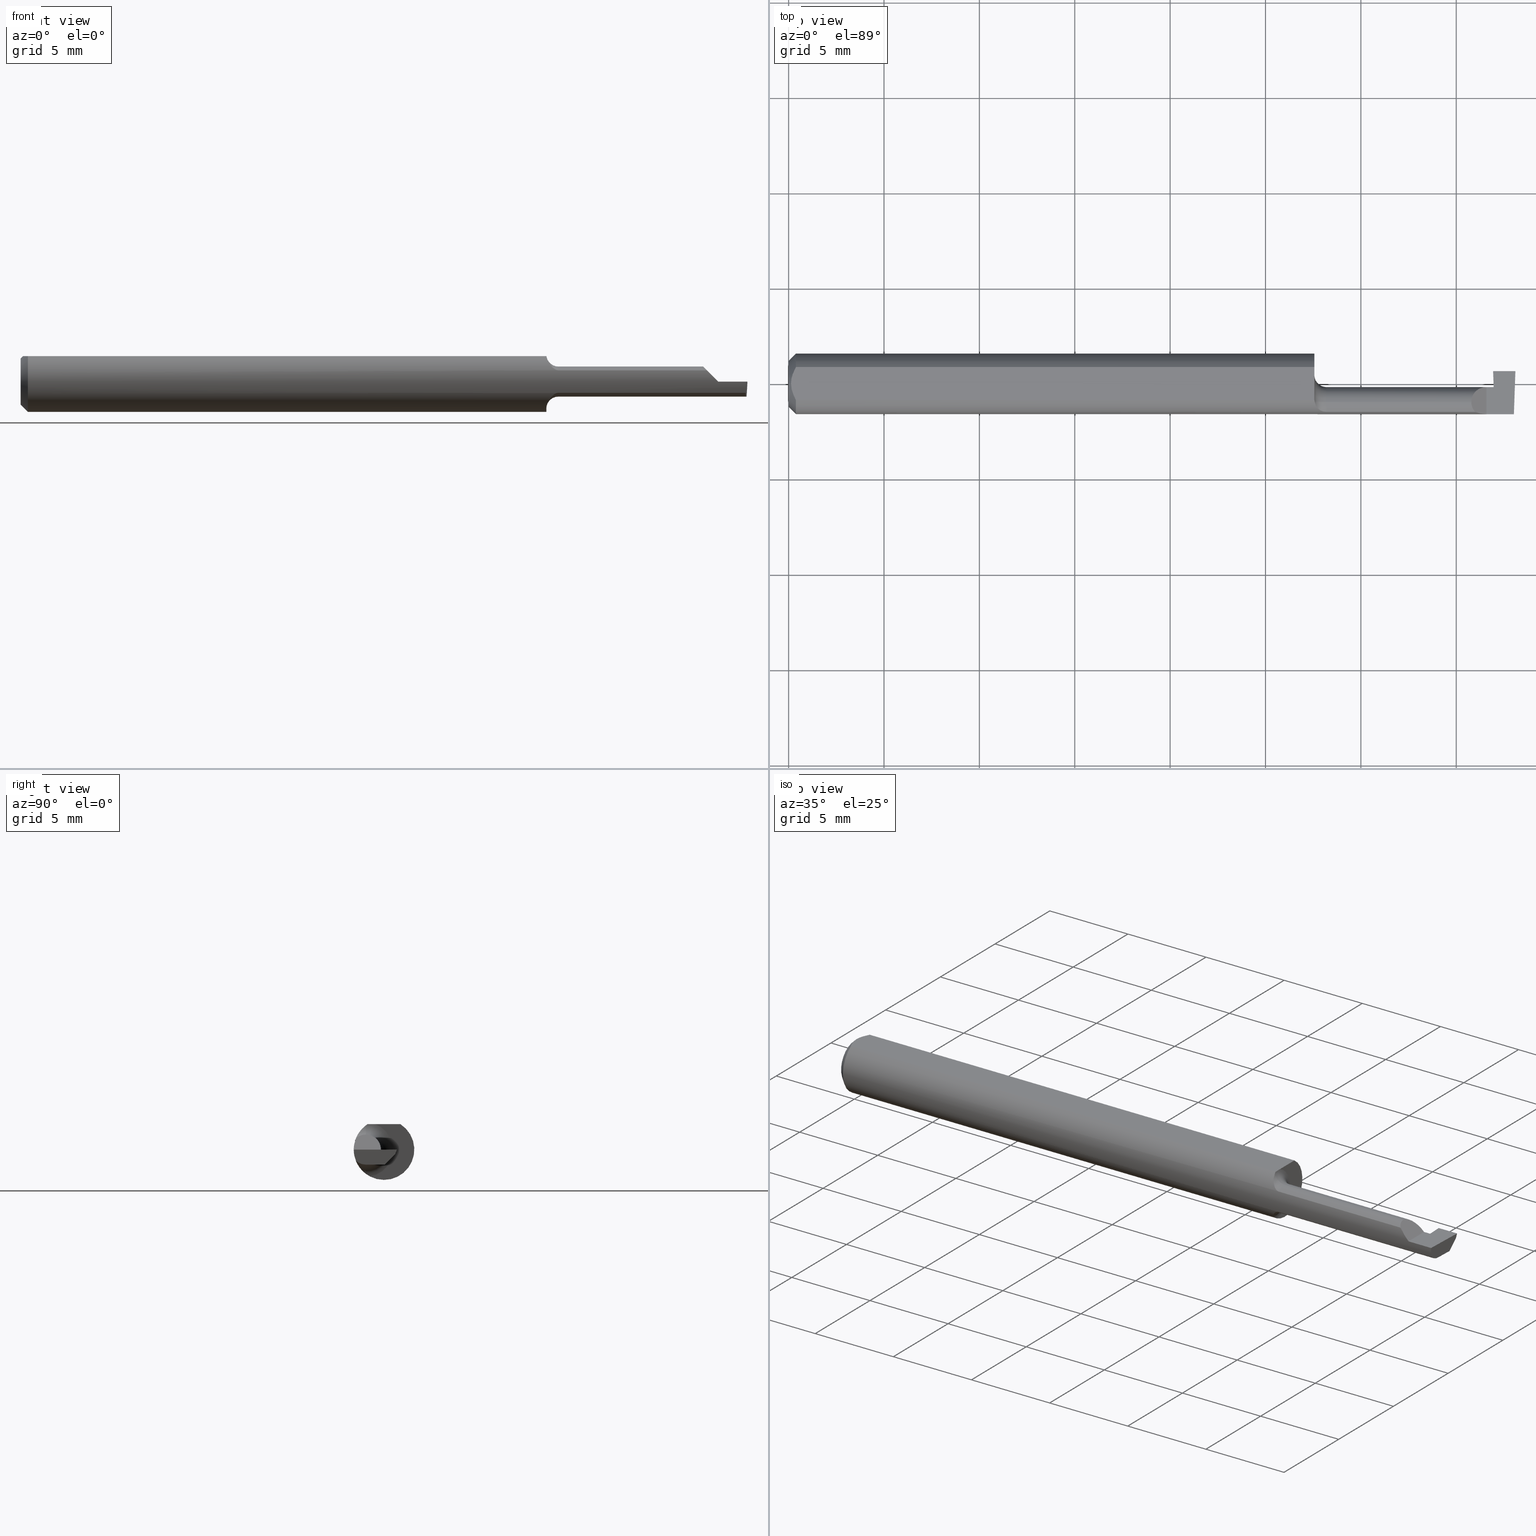
[diagram: canonical four-view strip — front | top / right | iso, engineering-drawing reading convention]
A machine part, canonical four-view strip (front | top / right | iso — engineering-drawing reading convention). The complete STEP part file that produces these views, byte-faithful:
ISO-10303-21;
HEADER;
FILE_DESCRIPTION (( 'STEP AP203' ),
    '1' );
FILE_NAME ('220563-GT045-6.STEP',
    '2024-07-15T18:48:11',
    ( '' ),
    ( '' ),
    'SwSTEP 2.0',
    'SolidWorks 2024',
    '' );
FILE_SCHEMA (( 'CONFIG_CONTROL_DESIGN' ));
ENDSEC;

DATA;
#1 =( BOUNDED_CURVE ( )  B_SPLINE_CURVE ( 3, ( #208, #431, #599, #319 ),
 .UNSPECIFIED., .F., .T. ) 
 B_SPLINE_CURVE_WITH_KNOTS ( ( 4, 4 ),
 ( 0.000000000000000000, 1.570796326794896558 ),
 .UNSPECIFIED. ) 
 CURVE ( )  GEOMETRIC_REPRESENTATION_ITEM ( )  RATIONAL_B_SPLINE_CURVE ( ( 1.000000000000000000, 0.8047378541243649375, 0.8047378541243649375, 1.000000000000000000 ) ) 
 REPRESENTATION_ITEM ( '' )  );
#2 = ADVANCED_BREP_SHAPE_REPRESENTATION ( '220563-GT045-6', ( #227, #687 ), #305 ) ;
#3 = DATE_AND_TIME ( #445, #604 ) ;
#4 = DIRECTION ( 'NONE',  ( -1.000000000000000000, 0.000000000000000000, 1.244982809612622067E-16 ) ) ;
#5 = VERTEX_POINT ( 'NONE', #678 ) ;
#6 = VECTOR ( 'NONE', #194, 39.37007874015748143 ) ;
#7 = DIRECTION ( 'NONE',  ( -0.03654090288697207922, -0.3417917279781195750, -0.9390650547762576794 ) ) ;
#8 = ORIENTED_EDGE ( 'NONE', *, *, #124, .T. ) ;
#9 = ORIENTED_EDGE ( 'NONE', *, *, #271, .F. ) ;
#10 = ORIENTED_EDGE ( 'NONE', *, *, #285, .F. ) ;
#11 = DIRECTION ( 'NONE',  ( -1.000000000000000000, -0.000000000000000000, -0.000000000000000000 ) ) ;
#12 = DIRECTION ( 'NONE',  ( 0.000000000000000000, 0.000000000000000000, -1.000000000000000000 ) ) ;
#13 = ORIENTED_EDGE ( 'NONE', *, *, #271, .T. ) ;
#14 = CARTESIAN_POINT ( 'NONE',  ( 0.004999999999989314207, 8.235553591830799656E-16, 0.05250000000000000500 ) ) ;
#15 = PRODUCT_DEFINITION_FORMATION_WITH_SPECIFIED_SOURCE ( 'ANY', '', #254, .NOT_KNOWN. ) ;
#16 = FACE_OUTER_BOUND ( 'NONE', #65, .T. ) ;
#17 = DIRECTION ( 'NONE',  ( -1.000000000000000000, -0.000000000000000000, -0.000000000000000000 ) ) ;
#18 = EDGE_CURVE ( 'NONE', #538, #423, #701, .T. ) ;
#19 = DIRECTION ( 'NONE',  ( 0.02616100201822768243, -0.0009135623211514326287, 0.9996573249755575929 ) ) ;
#20 = CARTESIAN_POINT ( 'NONE',  ( 1.496892051515234412, -0.06249999999999996531, -4.074989739627355278E-18 ) ) ;
#21 = ORIENTED_EDGE ( 'NONE', *, *, #669, .F. ) ;
#22 = CARTESIAN_POINT ( 'NONE',  ( 1.084999999999999964, -0.02902000000000000066, -0.05535421935137375266 ) ) ;
#23 = CARTESIAN_POINT ( 'NONE',  ( 0.01499999999999999944, 0.000000000000000000, -0.06250000000000000000 ) ) ;
#24 = ORIENTED_EDGE ( 'NONE', *, *, #285, .T. ) ;
#25 = CARTESIAN_POINT ( 'NONE',  ( 1.498327304259646553, 0.001860297657337897561, -0.03099999999999998937 ) ) ;
#26 = CARTESIAN_POINT ( 'NONE',  ( 1.091038272854087943, -0.05007310510346346666, 0.03753991800363104536 ) ) ;
#27 = AXIS2_PLACEMENT_3D ( 'NONE', #210, #368, #536 ) ;
#28 = VERTEX_POINT ( 'NONE', #234 ) ;
#29 = DIRECTION ( 'NONE',  ( 0.000000000000000000, 0.000000000000000000, 1.000000000000000000 ) ) ;
#30 = ORIENTED_EDGE ( 'NONE', *, *, #38, .T. ) ;
#31 = DIRECTION ( 'NONE',  ( 0.000000000000000000, 0.000000000000000000, 1.000000000000000000 ) ) ;
#32 = PLANE ( 'NONE',  #603 ) ;
#33 = ORIENTED_EDGE ( 'NONE', *, *, #326, .T. ) ;
#34 = ADVANCED_FACE ( 'NONE', ( #247 ), #348, .F. ) ;
#35 = DATE_AND_TIME ( #313, #482 ) ;
#36 = CARTESIAN_POINT ( 'NONE',  ( 0.004999999999989314207, 8.235553591830799656E-16, 0.05250000000000000500 ) ) ;
#37 = DIMENSIONAL_EXPONENTS ( 1.000000000000000000, 0.000000000000000000, 0.000000000000000000, 0.000000000000000000, 0.000000000000000000, 0.000000000000000000, 0.000000000000000000 ) ;
#38 = EDGE_CURVE ( 'NONE', #697, #715, #47, .T. ) ;
#39 = VECTOR ( 'NONE', #7, 39.37007874015748854 ) ;
#40 = VERTEX_POINT ( 'NONE', #636 ) ;
#41 = DIRECTION ( 'NONE',  ( 4.253255647401026887E-05, 0.9999999990954908657, -1.860522997331906175E-16 ) ) ;
#42 = CARTESIAN_POINT ( 'NONE',  ( 1.409000000000000474, -0.04514286293877214917, 0.03099999999999999631 ) ) ;
#43 = CARTESIAN_POINT ( 'NONE',  ( 1.456236150116379857, 0.05427201893379499792, -0.03100000000000001019 ) ) ;
#44 = CARTESIAN_POINT ( 'NONE',  ( 1.084999999999999964, -0.006499999999999993630, 5.166678659892382429E-17 ) ) ;
#45 = DIRECTION ( 'NONE',  ( 0.000000000000000000, -0.7071067811865462405, 0.7071067811865487940 ) ) ;
#46 = LINE ( 'NONE', #713, #560 ) ;
#47 = CIRCLE ( 'NONE', #203, 0.04749999999999999362 ) ;
#48 = APPROVAL_PERSON_ORGANIZATION ( #483, #441, #363 ) ;
#49 = EDGE_CURVE ( 'NONE', #715, #697, #547, .T. ) ;
#50 = DIRECTION ( 'NONE',  ( -0.9990483607430197255, 0.03488753751661151370, 0.02617694830785934762 ) ) ;
#51 = EDGE_LOOP ( 'NONE', ( #8, #495, #373 ) ) ;
#52 = B_SPLINE_CURVE_WITH_KNOTS ( 'NONE', 3,
 ( #642, #263, #476, #427 ),
 .UNSPECIFIED., .F., .F.,
 ( 4, 4 ),
 ( 3.663786157375969069E-07, 0.0001117245180919403103 ),
 .UNSPECIFIED. ) ;
#53 = CC_DESIGN_DATE_AND_TIME_ASSIGNMENT ( #338, #709, ( #675 ) ) ;
#54 = LINE ( 'NONE', #274, #424 ) ;
#55 = ORIENTED_EDGE ( 'NONE', *, *, #417, .F. ) ;
#56 = CARTESIAN_POINT ( 'NONE',  ( 1.085049859856598298, -0.02331211554534654354, 0.05250000000000001193 ) ) ;
#57 = CARTESIAN_POINT ( 'NONE',  ( 1.110000000000000098, -0.03749999999999999167, 0.000000000000000000 ) ) ;
#58 = ORIENTED_EDGE ( 'NONE', *, *, #59, .T. ) ;
#59 = EDGE_CURVE ( 'NONE', #28, #92, #649, .T. ) ;
#60 = AXIS2_PLACEMENT_3D ( 'NONE', #407, #419, #116 ) ;
#61 = CARTESIAN_POINT ( 'NONE',  ( 1.440000000000000169, -0.06250000000000000000, 7.469896857675718968E-18 ) ) ;
#62 = ORIENTED_EDGE ( 'NONE', *, *, #107, .T. ) ;
#63 = CARTESIAN_POINT ( 'NONE',  ( 1.085730677800976984, -0.03749999999999999861, 0.05000000000000000278 ) ) ;
#64 = CARTESIAN_POINT ( 'NONE',  ( 0.000000000000000000, 0.000000000000000000, 0.000000000000000000 ) ) ;
#65 = EDGE_LOOP ( 'NONE', ( #58, #525, #149, #112, #444, #257, #535, #236, #21, #640, #550, #335, #10, #485, #133 ) ) ;
#66 = ADVANCED_FACE ( 'NONE', ( #521 ), #502, .F. ) ;
#67 = PLANE ( 'NONE',  #235 ) ;
#68 = DIRECTION ( 'NONE',  ( 0.000000000000000000, 0.000000000000000000, 1.000000000000000000 ) ) ;
#69 = CARTESIAN_POINT ( 'NONE',  ( 1.089533395136242255, -0.04798856493085171954, 0.04019628732337204163 ) ) ;
#70 = AXIS2_PLACEMENT_3D ( 'NONE', #303, #75, #578 ) ;
#71 = AXIS2_PLACEMENT_3D ( 'NONE', #463, #398, #68 ) ;
#72 = DIRECTION ( 'NONE',  ( 0.000000000000000000, 0.000000000000000000, -1.000000000000000000 ) ) ;
#73 = DIRECTION ( 'NONE',  ( 0.000000000000000000, 0.000000000000000000, 1.000000000000000000 ) ) ;
#74 = CARTESIAN_POINT ( 'NONE',  ( 1.456233566933940349, -0.006462219764328836283, -0.03100000000000000672 ) ) ;
#75 = DIRECTION ( 'NONE',  ( -1.000000000000000000, -0.000000000000000000, -0.000000000000000000 ) ) ;
#76 = ORIENTED_EDGE ( 'NONE', *, *, #607, .F. ) ;
#77 = DIRECTION ( 'NONE',  ( -0.7071067811865489050, 0.000000000000000000, -0.7071067811865461294 ) ) ;
#78 = CARTESIAN_POINT ( 'NONE',  ( 1.496952812378028463, -0.03749999999999999167, -0.03099999999999999631 ) ) ;
#79 = CARTESIAN_POINT ( 'NONE',  ( 1.455743911843603300, 0.02656089874350437557, -0.04996954135095477145 ) ) ;
#80 = EDGE_CURVE ( 'NONE', #475, #477, #377, .T. ) ;
#81 = EDGE_LOOP ( 'NONE', ( #170, #102, #199, #272, #688 ) ) ;
#82 = DATE_AND_TIME ( #641, #540 ) ;
#83 = CARTESIAN_POINT ( 'NONE',  ( 1.085730677800976984, -0.03749999999999999167, -0.05000000000000000278 ) ) ;
#84 = CIRCLE ( 'NONE', #490, 0.03099999999999999978 ) ;
#85 = CONICAL_SURFACE ( 'NONE', #27, 0.06250000000000000000, 0.7853981633974483900 ) ;
#86 = ORIENTED_EDGE ( 'NONE', *, *, #644, .F. ) ;
#87 = PERSON_AND_ORGANIZATION_ROLE ( 'creator' ) ;
#88 = DIRECTION ( 'NONE',  ( 0.9993915692023304098, -4.250667839518903958E-05, 0.03487821097026150285 ) ) ;
#89 = VERTEX_POINT ( 'NONE', #20 ) ;
#90 = EDGE_CURVE ( 'NONE', #561, #504, #188, .T. ) ;
#91 = MECHANICAL_CONTEXT ( 'NONE', #169, 'mechanical' ) ;
#92 = VERTEX_POINT ( 'NONE', #242 ) ;
#93 = LINE ( 'NONE', #590, #114 ) ;
#94 = CLOSED_SHELL ( 'NONE', ( #627, #392, #66, #693, #467, #652, #109, #295, #440, #698, #571, #522, #157, #309, #429, #316, #262, #34, #181, #349 ) ) ;
#95 = DIRECTION ( 'NONE',  ( -1.000000000000000000, -0.000000000000000000, -0.000000000000000000 ) ) ;
#96 = LINE ( 'NONE', #380, #214 ) ;
#97 = CARTESIAN_POINT ( 'NONE',  ( 1.500157305068630098, 0.05426466433133510237, -0.03100000000000001019 ) ) ;
#98 = CARTESIAN_POINT ( 'NONE',  ( 1.084999999999999964, -0.02066217183493446533, 0.05250000000000000500 ) ) ;
#99 = EDGE_CURVE ( 'NONE', #475, #553, #594, .T. ) ;
#100 = COORDINATED_UNIVERSAL_TIME_OFFSET ( 8, 0, .BEHIND. ) ;
#101 = DIRECTION ( 'NONE',  ( 0.000000000000000000, -0.7071067811865487940, -0.7071067811865462405 ) ) ;
#102 = ORIENTED_EDGE ( 'NONE', *, *, #533, .T. ) ;
#103 = VECTOR ( 'NONE', #434, 39.37007874015748143 ) ;
#104 = VECTOR ( 'NONE', #586, 39.37007874015748143 ) ;
#105 = CARTESIAN_POINT ( 'NONE',  ( 1.440000000000000169, -0.1000000000000000056, 7.469896857675718968E-18 ) ) ;
#106 = ORIENTED_EDGE ( 'NONE', *, *, #80, .T. ) ;
#107 = EDGE_CURVE ( 'NONE', #715, #556, #307, .T. ) ;
#108 = CARTESIAN_POINT ( 'NONE',  ( 1.499999999999999556, 0.02649999999999997843, -1.043117739768287950E-16 ) ) ;
#109 = ADVANCED_FACE ( 'NONE', ( #356 ), #474, .T. ) ;
#110 = ORIENTED_EDGE ( 'NONE', *, *, #132, .T. ) ;
#111 = CARTESIAN_POINT ( 'NONE',  ( 1.084999999999999964, -0.03199811029573849247, -0.05379291541113154218 ) ) ;
#112 = ORIENTED_EDGE ( 'NONE', *, *, #336, .T. ) ;
#113 = ORIENTED_EDGE ( 'NONE', *, *, #219, .F. ) ;
#114 = VECTOR ( 'NONE', #542, 39.37007874015748143 ) ;
#115 = VECTOR ( 'NONE', #41, 39.37007874015748143 ) ;
#116 = DIRECTION ( 'NONE',  ( 0.000000000000000000, 0.000000000000000000, -1.000000000000000000 ) ) ;
#117 = DIRECTION ( 'NONE',  ( -1.000000000000000000, -0.000000000000000000, -0.000000000000000000 ) ) ;
#118 = ORIENTED_EDGE ( 'NONE', *, *, #336, .F. ) ;
#119 = EDGE_CURVE ( 'NONE', #697, #230, #122, .T. ) ;
#120 = ORIENTED_EDGE ( 'NONE', *, *, #629, .F. ) ;
#121 = CARTESIAN_POINT ( 'NONE',  ( 1.409000000000000252, -0.03749999999999999167, 0.03099999999999999978 ) ) ;
#122 = LINE ( 'NONE', #23, #6 ) ;
#123 = ORIENTED_EDGE ( 'NONE', *, *, #135, .T. ) ;
#124 = EDGE_CURVE ( 'NONE', #634, #5, #413, .T. ) ;
#125 = DIRECTION ( 'NONE',  ( -1.000000000000000000, -0.000000000000000000, -0.000000000000000000 ) ) ;
#126 = CARTESIAN_POINT ( 'NONE',  ( 0.01499999999999999944, 0.000000000000000000, 0.000000000000000000 ) ) ;
#127 = CARTESIAN_POINT ( 'NONE',  ( 1.097133919495981047, -0.05512334192814497685, -0.02956107256455829321 ) ) ;
#128 = APPROVAL ( #375, 'UNSPECIFIED' ) ;
#129 = CONICAL_SURFACE ( 'NONE', #60, 0.06250000000000000000, 0.7853981633974483900 ) ;
#130 = FACE_OUTER_BOUND ( 'NONE', #448, .T. ) ;
#131 = CARTESIAN_POINT ( 'NONE',  ( 0.01499999999999999944, 7.654042494670957545E-18, 0.06250000000000000000 ) ) ;
#132 = EDGE_CURVE ( 'NONE', #28, #538, #201, .T. ) ;
#133 = ORIENTED_EDGE ( 'NONE', *, *, #132, .F. ) ;
#134 = CARTESIAN_POINT ( 'NONE',  ( 1.102745188404311349, -0.05730285598938307523, 0.02507717503036208453 ) ) ;
#135 = EDGE_CURVE ( 'NONE', #617, #553, #648, .T. ) ;
#136 = ORIENTED_EDGE ( 'NONE', *, *, #135, .F. ) ;
#137 = PERSON_AND_ORGANIZATION ( #512, #585 ) ;
#138 = DIRECTION ( 'NONE',  ( 0.9987827668610292919, 0.03485699000042362383, 0.03489949669461413218 ) ) ;
#139 = VERTEX_POINT ( 'NONE', #211 ) ;
#140 = CC_DESIGN_PERSON_AND_ORGANIZATION_ASSIGNMENT ( #141, #87, ( #15 ) ) ;
#141 = PERSON_AND_ORGANIZATION ( #512, #585 ) ;
#142 = CARTESIAN_POINT ( 'NONE',  ( 0.006056885874551373727, -0.01188654981375985957, 0.05250000000000001193 ) ) ;
#143 = AXIS2_PLACEMENT_3D ( 'NONE', #439, #446, #501 ) ;
#144 = ORIENTED_EDGE ( 'NONE', *, *, #374, .F. ) ;
#145 = EDGE_CURVE ( 'NONE', #394, #504, #484, .T. ) ;
#146 =( NAMED_UNIT ( * ) SI_UNIT ( $, .STERADIAN. ) SOLID_ANGLE_UNIT ( ) );
#147 = DIRECTION ( 'NONE',  ( 0.000000000000000000, 0.000000000000000000, -1.000000000000000000 ) ) ;
#148 = B_SPLINE_CURVE_WITH_KNOTS ( 'NONE', 3,
 ( #494, #282, #111, #454 ),
 .UNSPECIFIED., .F., .F.,
 ( 4, 4 ),
 ( 0.001139280036252702339, 0.001394915048278309779 ),
 .UNSPECIFIED. ) ;
#149 = ORIENTED_EDGE ( 'NONE', *, *, #711, .T. ) ;
#150 =( BOUNDED_CURVE ( )  B_SPLINE_CURVE ( 3, ( #479, #534, #42, #706 ),
 .UNSPECIFIED., .F., .T. ) 
 B_SPLINE_CURVE_WITH_KNOTS ( ( 4, 4 ),
 ( 5.559787323582177976, 6.283185307179586232 ),
 .UNSPECIFIED. ) 
 CURVE ( )  GEOMETRIC_REPRESENTATION_ITEM ( )  RATIONAL_B_SPLINE_CURVE ( ( 1.000000000000000000, 0.9568646414437724790, 0.9568646414437724790, 1.000000000000000000 ) ) 
 REPRESENTATION_ITEM ( '' )  );
#151 = CALENDAR_DATE ( 2024, 15, 7 ) ;
#152 = CARTESIAN_POINT ( 'NONE',  ( 0.01216049014016022493, -0.02867836381244416935, 0.05250000000000000500 ) ) ;
#153 = PERSON_AND_ORGANIZATION ( #512, #585 ) ;
#154 = DIRECTION ( 'NONE',  ( 1.000000000000000000, -0.000000000000000000, -0.000000000000000000 ) ) ;
#155 = VECTOR ( 'NONE', #325, 39.37007874015748143 ) ;
#156 = VECTOR ( 'NONE', #635, 39.37007874015748143 ) ;
#157 = ADVANCED_FACE ( 'NONE', ( #587 ), #256, .T. ) ;
#158 = CARTESIAN_POINT ( 'NONE',  ( 0.009676924495017957123, -0.02328413057436891712, 0.05250000000000001193 ) ) ;
#159 = PERSON_AND_ORGANIZATION ( #512, #585 ) ;
#160 = FACE_OUTER_BOUND ( 'NONE', #653, .T. ) ;
#161 = EDGE_LOOP ( 'NONE', ( #174, #383, #511, #357 ) ) ;
#162 = FACE_OUTER_BOUND ( 'NONE', #161, .T. ) ;
#163 = B_SPLINE_CURVE_WITH_KNOTS ( 'NONE', 3,
 ( #519, #689, #676, #301, #354, #14 ),
 .UNSPECIFIED., .F., .F.,
 ( 4, 2, 4 ),
 ( 0.0009797930073890425730, 0.001428868798926340253, 0.001877944590463637717 ),
 .UNSPECIFIED. ) ;
#164 = ORIENTED_EDGE ( 'NONE', *, *, #565, .F. ) ;
#165 = AXIS2_PLACEMENT_3D ( 'NONE', #57, #618, #546 ) ;
#166 = AXIS2_PLACEMENT_3D ( 'NONE', #64, #684, #72 ) ;
#167 = EDGE_CURVE ( 'NONE', #337, #300, #266, .T. ) ;
#168 = CARTESIAN_POINT ( 'NONE',  ( 1.110000000000000098, -0.03749999999999999167, 0.000000000000000000 ) ) ;
#169 = APPLICATION_CONTEXT ( 'configuration controlled 3d designs of mechanical parts and assemblies' ) ;
#170 = ORIENTED_EDGE ( 'NONE', *, *, #584, .T. ) ;
#171 = CARTESIAN_POINT ( 'NONE',  ( 1.454000000000000181, 0.02649999999999999231, -4.390358774943263236E-18 ) ) ;
#172 = CARTESIAN_POINT ( 'NONE',  ( 1.499610879962989252, 0.02286029765733796001, -0.01000000000000000888 ) ) ;
#173 = ORIENTED_EDGE ( 'NONE', *, *, #629, .T. ) ;
#174 = ORIENTED_EDGE ( 'NONE', *, *, #374, .T. ) ;
#175 = PLANE ( 'NONE',  #280 ) ;
#176 = FACE_OUTER_BOUND ( 'NONE', #694, .T. ) ;
#177 = VERTEX_POINT ( 'NONE', #700 ) ;
#178 = CIRCLE ( 'NONE', #527, 0.06250000000000000000 ) ;
#179 = DIRECTION ( 'NONE',  ( -1.000000000000000000, -0.000000000000000000, -0.000000000000000000 ) ) ;
#180 = CARTESIAN_POINT ( 'NONE',  ( 1.086822973508685175, -0.04339095032599648433, -0.04558178725550264543 ) ) ;
#181 = ADVANCED_FACE ( 'NONE', ( #379 ), #593, .F. ) ;
#182 = DIRECTION ( 'NONE',  ( 1.000000000000000000, 0.000000000000000000, 0.000000000000000000 ) ) ;
#183 = CARTESIAN_POINT ( 'NONE',  ( 1.495584001414323128, -0.06245432188394240552, -0.04998286624877785328 ) ) ;
#184 = CARTESIAN_POINT ( 'NONE',  ( 1.097125360129863392, -0.05512021181523645702, 0.02956762184361229340 ) ) ;
#185 = DIRECTION ( 'NONE',  ( -0.000000000000000000, 1.000000000000000000, 0.000000000000000000 ) ) ;
#186 = CARTESIAN_POINT ( 'NONE',  ( 1.455785434802166822, -0.006499999999999978885, -0.01815937956643404530 ) ) ;
#187 = EDGE_CURVE ( 'NONE', #621, #421, #695, .T. ) ;
#188 = LINE ( 'NONE', #685, #191 ) ;
#189 = VERTEX_POINT ( 'NONE', #213 ) ;
#190 = EDGE_CURVE ( 'NONE', #279, #230, #178, .T. ) ;
#191 = VECTOR ( 'NONE', #624, 39.37007874015748854 ) ;
#192 = CIRCLE ( 'NONE', #367, 0.06250000000000000000 ) ;
#193 = DIRECTION ( 'NONE',  ( -1.000000000000000000, -0.000000000000000000, -0.000000000000000000 ) ) ;
#194 = DIRECTION ( 'NONE',  ( 0.7071067811865474617, 0.000000000000000000, -0.7071067811865475727 ) ) ;
#195 = ORIENTED_EDGE ( 'NONE', *, *, #500, .F. ) ;
#196 = FACE_OUTER_BOUND ( 'NONE', #287, .T. ) ;
#197 =( NAMED_UNIT ( * ) PLANE_ANGLE_UNIT ( ) SI_UNIT ( $, .RADIAN. ) );
#198 = CARTESIAN_POINT ( 'NONE',  ( 1.500000000000000222, -0.06250000000000001388, 0.05250000000000000500 ) ) ;
#199 = ORIENTED_EDGE ( 'NONE', *, *, #219, .T. ) ;
#200 = APPROVAL_ROLE ( '' ) ;
#201 = LINE ( 'NONE', #597, #459 ) ;
#202 = ORIENTED_EDGE ( 'NONE', *, *, #552, .T. ) ;
#203 = AXIS2_PLACEMENT_3D ( 'NONE', #352, #17, #73 ) ;
#204 = CARTESIAN_POINT ( 'NONE',  ( 2.324973294346407873E-32, -0.06250000000000000000, 1.867474214418933224E-16 ) ) ;
#205 = DIRECTION ( 'NONE',  ( 0.000000000000000000, -0.9396926207859080948, 0.3420201433256694901 ) ) ;
#206 = ORIENTED_EDGE ( 'NONE', *, *, #669, .T. ) ;
#207 = LENGTH_MEASURE_WITH_UNIT ( LENGTH_MEASURE( 0.02539999999999999897 ), #433 );
#208 = CARTESIAN_POINT ( 'NONE',  ( 1.409000000000000252, -0.03749999999999999167, 0.03099999999999999978 ) ) ;
#209 = ORIENTED_EDGE ( 'NONE', *, *, #18, .T. ) ;
#210 = CARTESIAN_POINT ( 'NONE',  ( 0.01499999999999999944, 0.000000000000000000, 0.000000000000000000 ) ) ;
#211 = CARTESIAN_POINT ( 'NONE',  ( 1.416763614738949295, -0.05802000000000001600, 0.02323638526105122060 ) ) ;
#212 = EDGE_CURVE ( 'NONE', #89, #300, #93, .T. ) ;
#213 = CARTESIAN_POINT ( 'NONE',  ( 1.084999999999999964, -0.01801282473009493609, 0.05250000000000000500 ) ) ;
#214 = VECTOR ( 'NONE', #95, 39.37007874015748143 ) ;
#215 = APPROVAL_DATE_TIME ( #3, #311 ) ;
#216 = CARTESIAN_POINT ( 'NONE',  ( 1.454476443978508282, 0.02286029765733796001, -0.01000000000000000368 ) ) ;
#217 = CARTESIAN_POINT ( 'NONE',  ( 1.424175658816638546, -0.06098844384283146070, 0.01582434118336195975 ) ) ;
#218 = ORIENTED_EDGE ( 'NONE', *, *, #119, .F. ) ;
#219 = EDGE_CURVE ( 'NONE', #575, #621, #96, .T. ) ;
#220 = CARTESIAN_POINT ( 'NONE',  ( 1.084999999999999964, -0.03749999999999999167, 0.000000000000000000 ) ) ;
#221 =( BOUNDED_CURVE ( )  B_SPLINE_CURVE ( 3, ( #510, #461, #577, #78 ),
 .UNSPECIFIED., .F., .T. ) 
 B_SPLINE_CURVE_WITH_KNOTS ( ( 4, 4 ),
 ( 0.2036900605468121850, 0.9270880441442186370 ),
 .UNSPECIFIED. ) 
 CURVE ( )  GEOMETRIC_REPRESENTATION_ITEM ( )  RATIONAL_B_SPLINE_CURVE ( ( 1.000000000000000000, 0.9568646414437727010, 0.9568646414437727010, 1.000000000000000000 ) ) 
 REPRESENTATION_ITEM ( '' )  );
#222 = LINE ( 'NONE', #97, #155 ) ;
#223 = ORIENTED_EDGE ( 'NONE', *, *, #450, .T. ) ;
#224 = AXIS2_PLACEMENT_3D ( 'NONE', #600, #503, #393 ) ;
#225 = DIRECTION ( 'NONE',  ( 0.000000000000000000, 0.000000000000000000, 1.000000000000000000 ) ) ;
#226 = ORIENTED_EDGE ( 'NONE', *, *, #372, .F. ) ;
#227 = MANIFOLD_SOLID_BREP ( 'Front Angle', #94 ) ;
#228 = ORIENTED_EDGE ( 'NONE', *, *, #417, .T. ) ;
#229 = DIRECTION ( 'NONE',  ( 1.000000000000000000, -0.000000000000000000, -0.000000000000000000 ) ) ;
#230 = VERTEX_POINT ( 'NONE', #692 ) ;
#231 = EDGE_LOOP ( 'NONE', ( #366, #453, #702, #206, #9 ) ) ;
#232 = EDGE_CURVE ( 'NONE', #617, #394, #1, .T. ) ;
#233 = CARTESIAN_POINT ( 'NONE',  ( 0.000000000000000000, -0.03391164991562636150, 0.05249999999999998418 ) ) ;
#234 = CARTESIAN_POINT ( 'NONE',  ( 1.496439659513480569, -0.05802000000000000213, -0.02323638526105124835 ) ) ;
#235 = AXIS2_PLACEMENT_3D ( 'NONE', #288, #680, #350 ) ;
#236 = ORIENTED_EDGE ( 'NONE', *, *, #552, .F. ) ;
#237 = VECTOR ( 'NONE', #605, 39.37007874015749564 ) ;
#238 = CARTESIAN_POINT ( 'NONE',  ( 1.110000000000000098, -0.03749999999999999167, 0.000000000000000000 ) ) ;
#239 = DIRECTION ( 'NONE',  ( 0.000000000000000000, 0.000000000000000000, 1.000000000000000000 ) ) ;
#240 = CARTESIAN_POINT ( 'NONE',  ( 1.087141915052869612, -0.04317098555031172180, 0.04533111387689952448 ) ) ;
#241 = CARTESIAN_POINT ( 'NONE',  ( 0.01499999999999999944, -0.03391164991562636150, 0.05249999999999998418 ) ) ;
#242 = CARTESIAN_POINT ( 'NONE',  ( 1.496890555848597870, -0.06249997390100388295, -5.711719386470728930E-05 ) ) ;
#243 = EDGE_CURVE ( 'NONE', #139, #617, #150, .T. ) ;
#244 = ORIENTED_EDGE ( 'NONE', *, *, #365, .T. ) ;
#245 = CARTESIAN_POINT ( 'NONE',  ( 1.084999999999999964, -0.06250000000000001388, 0.05250000000000000500 ) ) ;
#246 = CARTESIAN_POINT ( 'NONE',  ( 0.000000000000000000, 0.000000000000000000, 0.000000000000000000 ) ) ;
#247 = FACE_OUTER_BOUND ( 'NONE', #428, .T. ) ;
#248 = ORIENTED_EDGE ( 'NONE', *, *, #167, .T. ) ;
#249 = AXIS2_PLACEMENT_3D ( 'NONE', #409, #457, #464 ) ;
#250 = CARTESIAN_POINT ( 'NONE',  ( 1.496952812378028463, -0.03749999999999999167, -0.03099999999999999631 ) ) ;
#251 = DIRECTION ( 'NONE',  ( 0.03492071764873293238, 0.000000000000000000, -0.9993900857417475914 ) ) ;
#252 = ORIENTED_EDGE ( 'NONE', *, *, #667, .T. ) ;
#253 = FACE_OUTER_BOUND ( 'NONE', #532, .T. ) ;
#254 = PRODUCT ( '220563-GT045-6', '220563-GT045-6', '', ( #91 ) ) ;
#255 = EDGE_LOOP ( 'NONE', ( #683, #666, #329 ) ) ;
#256 = PLANE ( 'NONE',  #481 ) ;
#257 = ORIENTED_EDGE ( 'NONE', *, *, #80, .F. ) ;
#258 = AXIS2_PLACEMENT_3D ( 'NONE', #576, #77, #513 ) ;
#259 = DATE_AND_TIME ( #151, #647 ) ;
#260 = DIRECTION ( 'NONE',  ( -1.000000000000000000, -0.000000000000000000, -0.000000000000000000 ) ) ;
#261 = ORIENTED_EDGE ( 'NONE', *, *, #654, .F. ) ;
#262 = ADVANCED_FACE ( 'NONE', ( #253 ), #32, .F. ) ;
#263 = CARTESIAN_POINT ( 'NONE',  ( 1.085349223843382394, -0.03514686346408685269, 0.05170213086808623376 ) ) ;
#264 = EDGE_CURVE ( 'NONE', #177, #475, #52, .T. ) ;
#265 =( CONVERSION_BASED_UNIT ( 'INCH', #207 ) LENGTH_UNIT ( ) NAMED_UNIT ( #37 ) );
#266 = LINE ( 'NONE', #371, #696 ) ;
#267 = DIRECTION ( 'NONE',  ( -0.000000000000000000, 1.000000000000000000, -0.000000000000000000 ) ) ;
#268 = VECTOR ( 'NONE', #299, 39.37007874015748143 ) ;
#269 = CC_DESIGN_DATE_AND_TIME_ASSIGNMENT ( #259, #544, ( #358 ) ) ;
#270 = DIRECTION ( 'NONE',  ( 0.000000000000000000, 0.000000000000000000, 1.000000000000000000 ) ) ;
#271 = EDGE_CURVE ( 'NONE', #556, #452, #330, .T. ) ;
#272 = ORIENTED_EDGE ( 'NONE', *, *, #703, .T. ) ;
#273 = COORDINATED_UNIVERSAL_TIME_OFFSET ( 8, 0, .BEHIND. ) ;
#274 = CARTESIAN_POINT ( 'NONE',  ( 1.400000000000000133, 0.02286029765733796001, -0.01000000000000000715 ) ) ;
#275 = ORIENTED_EDGE ( 'NONE', *, *, #49, .T. ) ;
#276 = SHAPE_DEFINITION_REPRESENTATION ( #554, #2 ) ;
#277 = CARTESIAN_POINT ( 'NONE',  ( 1.499425154834944873, 0.01982173306097602394, -0.01303856459636193107 ) ) ;
#278 = CARTESIAN_POINT ( 'NONE',  ( 1.455151682536162783, -0.006500000000000021386, 1.132879419432717802E-17 ) ) ;
#279 = VERTEX_POINT ( 'NONE', #705 ) ;
#280 = AXIS2_PLACEMENT_3D ( 'NONE', #609, #45, #101 ) ;
#281 = ORIENTED_EDGE ( 'NONE', *, *, #667, .F. ) ;
#282 = CARTESIAN_POINT ( 'NONE',  ( 1.085240408106322274, -0.03485588595911403437, -0.05198308553066447596 ) ) ;
#283 = ORIENTED_EDGE ( 'NONE', *, *, #232, .F. ) ;
#284 = ORIENTED_EDGE ( 'NONE', *, *, #326, .F. ) ;
#285 = EDGE_CURVE ( 'NONE', #423, #634, #148, .T. ) ;
#286 = FACE_OUTER_BOUND ( 'NONE', #296, .T. ) ;
#287 = EDGE_LOOP ( 'NONE', ( #406, #62, #646, #583, #218 ) ) ;
#288 = CARTESIAN_POINT ( 'NONE',  ( 1.500000000000000222, 0.05427015754537661829, -0.03100000000000001019 ) ) ;
#289 = DIRECTION ( 'NONE',  ( 1.000000000000000000, 0.000000000000000000, 0.000000000000000000 ) ) ;
#290 = CARTESIAN_POINT ( 'NONE',  ( 1.094858330071591945, -0.05365673730107053951, 0.03221049271007426357 ) ) ;
#291 = VECTOR ( 'NONE', #182, 39.37007874015748143 ) ;
#292 = CC_DESIGN_SECURITY_CLASSIFICATION ( #675, ( #15 ) ) ;
#293 = LINE ( 'NONE', #514, #387 ) ;
#294 = CARTESIAN_POINT ( 'NONE',  ( 1.496890555848597870, -0.06249997390100388295, -5.711719386470728930E-05 ) ) ;
#295 = ADVANCED_FACE ( 'NONE', ( #327 ), #339, .F. ) ;
#296 = EDGE_LOOP ( 'NONE', ( #591, #664, #615, #136, #611, #470 ) ) ;
#297 = PLANE ( 'NONE',  #258 ) ;
#298 = LINE ( 'NONE', #347, #156 ) ;
#299 = DIRECTION ( 'NONE',  ( 0.7071067811865474617, 8.659560562354934091E-17, 0.7071067811865475727 ) ) ;
#300 = VERTEX_POINT ( 'NONE', #108 ) ;
#301 = CARTESIAN_POINT ( 'NONE',  ( 0.006063917085846147297, 0.01190810954070469288, 0.05250000000000001887 ) ) ;
#302 = CARTESIAN_POINT ( 'NONE',  ( 1.458465371114397113, -0.1014495365676831157, 5.170989896621579439E-18 ) ) ;
#303 = CARTESIAN_POINT ( 'NONE',  ( 0.000000000000000000, 0.000000000000000000, 0.000000000000000000 ) ) ;
#304 = ORIENTED_EDGE ( 'NONE', *, *, #365, .F. ) ;
#305 =( GEOMETRIC_REPRESENTATION_CONTEXT ( 3 ) GLOBAL_UNCERTAINTY_ASSIGNED_CONTEXT ( ( #598 ) ) GLOBAL_UNIT_ASSIGNED_CONTEXT ( ( #265, #197, #146 ) ) REPRESENTATION_CONTEXT ( 'NONE', 'WORKASPACE' ) );
#306 = APPROVAL_DATE_TIME ( #82, #441 ) ;
#307 = LINE ( 'NONE', #131, #268 ) ;
#308 = ORIENTED_EDGE ( 'NONE', *, *, #390, .T. ) ;
#309 = ADVANCED_FACE ( 'NONE', ( #710 ), #613, .T. ) ;
#310 = DIRECTION ( 'NONE',  ( -1.000000000000000000, -0.000000000000000000, -0.000000000000000000 ) ) ;
#311 = APPROVAL ( #333, 'UNSPECIFIED' ) ;
#312 = ORIENTED_EDGE ( 'NONE', *, *, #264, .T. ) ;
#313 = CALENDAR_DATE ( 2024, 15, 7 ) ;
#314 = DIRECTION ( 'NONE',  ( 0.000000000000000000, -0.3420201433256694901, -0.9396926207859080948 ) ) ;
#315 = VERTEX_POINT ( 'NONE', #216 ) ;
#316 = ADVANCED_FACE ( 'NONE', ( #162 ), #175, .F. ) ;
#317 = AXIS2_PLACEMENT_3D ( 'NONE', #220, #548, #270 ) ;
#318 = APPROVAL_STATUS ( 'not_yet_approved' ) ;
#319 = CARTESIAN_POINT ( 'NONE',  ( 1.440000000000000169, -0.006500000000000019651, 7.469896857675718968E-18 ) ) ;
#320 = CC_DESIGN_APPROVAL ( #311, ( #675 ) ) ;
#321 = EDGE_CURVE ( 'NONE', #553, #421, #707, .T. ) ;
#322 = COORDINATED_UNIVERSAL_TIME_OFFSET ( 8, 0, .BEHIND. ) ;
#323 = DIRECTION ( 'NONE',  ( -1.000000000000000000, -0.000000000000000000, -0.000000000000000000 ) ) ;
#324 = FACE_OUTER_BOUND ( 'NONE', #480, .T. ) ;
#325 = DIRECTION ( 'NONE',  ( -0.03489949670249706259, -0.9993908270190959842, 1.859932635832894283E-16 ) ) ;
#326 = EDGE_CURVE ( 'NONE', #423, #421, #686, .T. ) ;
#327 = FACE_OUTER_BOUND ( 'NONE', #499, .T. ) ;
#328 = CIRCLE ( 'NONE', #570, 0.03099999999999999978 ) ;
#329 = ORIENTED_EDGE ( 'NONE', *, *, #703, .F. ) ;
#330 = B_SPLINE_CURVE_WITH_KNOTS ( 'NONE', 3,
 ( #36, #651, #142, #158, #152, #376 ),
 .UNSPECIFIED., .F., .F.,
 ( 4, 2, 4 ),
 ( 0.001877944590463637717, 0.002327931134338583757, 0.002777917678213529581 ),
 .UNSPECIFIED. ) ;
#331 = CYLINDRICAL_SURFACE ( 'NONE', #645, 0.03099999999999999978 ) ;
#332 = ORIENTED_EDGE ( 'NONE', *, *, #167, .F. ) ;
#333 = APPROVAL_STATUS ( 'not_yet_approved' ) ;
#334 = CARTESIAN_POINT ( 'NONE',  ( 1.500000000000000222, -0.1000000000000000056, 0.000000000000000000 ) ) ;
#335 = ORIENTED_EDGE ( 'NONE', *, *, #124, .F. ) ;
#336 = EDGE_CURVE ( 'NONE', #670, #139, #472, .T. ) ;
#337 = VERTEX_POINT ( 'NONE', #171 ) ;
#338 = DATE_AND_TIME ( #436, #708 ) ;
#339 = PLANE ( 'NONE',  #619 ) ;
#340 = ORIENTED_EDGE ( 'NONE', *, *, #243, .F. ) ;
#341 = EDGE_CURVE ( 'NONE', #508, #691, #555, .T. ) ;
#342 = VECTOR ( 'NONE', #19, 39.37007874015748854 ) ;
#343 = FACE_OUTER_BOUND ( 'NONE', #81, .T. ) ;
#344 = CARTESIAN_POINT ( 'NONE',  ( 1.084999999999999964, -0.03749999999999999167, 0.000000000000000000 ) ) ;
#345 = ORIENTED_EDGE ( 'NONE', *, *, #145, .F. ) ;
#346 = EDGE_LOOP ( 'NONE', ( #507, #113, #261, #110, #557 ) ) ;
#347 = CARTESIAN_POINT ( 'NONE',  ( 1.500000000000000222, 0.001860297657337893224, -0.03100000000000000325 ) ) ;
#348 = PLANE ( 'NONE',  #632 ) ;
#349 = ADVANCED_FACE ( 'NONE', ( #324 ), #559, .F. ) ;
#350 = DIRECTION ( 'NONE',  ( 0.000000000000000000, -1.000000000000000000, 1.860523117437084140E-16 ) ) ;
#351 = DIRECTION ( 'NONE',  ( -1.000000000000000000, -0.000000000000000000, -0.000000000000000000 ) ) ;
#352 = CARTESIAN_POINT ( 'NONE',  ( 0.000000000000000000, 0.000000000000000000, 0.000000000000000000 ) ) ;
#353 = VECTOR ( 'NONE', #443, 39.37007874015748143 ) ;
#354 = CARTESIAN_POINT ( 'NONE',  ( 0.004999999999999040802, 0.005952453510029875015, 0.05249999999999999806 ) ) ;
#355 = CARTESIAN_POINT ( 'NONE',  ( 0.000000000000000000, 0.000000000000000000, -0.04749999999999999362 ) ) ;
#356 = FACE_OUTER_BOUND ( 'NONE', #370, .T. ) ;
#357 = ORIENTED_EDGE ( 'NONE', *, *, #607, .T. ) ;
#358 = PRODUCT_DEFINITION ( 'UNKNOWN', '', #15, #712 ) ;
#359 = FACE_OUTER_BOUND ( 'NONE', #637, .T. ) ;
#360 = DIRECTION ( 'NONE',  ( 0.000000000000000000, 0.000000000000000000, 1.000000000000000000 ) ) ;
#361 = CARTESIAN_POINT ( 'NONE',  ( 1.496682112777580453, -0.06249269490856873555, -0.008022088972760511166 ) ) ;
#362 = ORIENTED_EDGE ( 'NONE', *, *, #212, .F. ) ;
#363 = APPROVAL_ROLE ( '' ) ;
#364 = DIRECTION ( 'NONE',  ( 1.000000000000000000, 0.000000000000000000, 0.000000000000000000 ) ) ;
#365 = EDGE_CURVE ( 'NONE', #300, #508, #659, .T. ) ;
#366 = ORIENTED_EDGE ( 'NONE', *, *, #107, .F. ) ;
#367 = AXIS2_PLACEMENT_3D ( 'NONE', #126, #351, #568 ) ;
#368 = DIRECTION ( 'NONE',  ( 1.000000000000000000, 0.000000000000000000, 0.000000000000000000 ) ) ;
#369 = CARTESIAN_POINT ( 'NONE',  ( 1.084999999999999964, -0.03749999999999999167, 0.03099999999999999978 ) ) ;
#370 = EDGE_LOOP ( 'NONE', ( #202, #564, #671, #650, #386, #13 ) ) ;
#371 = CARTESIAN_POINT ( 'NONE',  ( 1.400000000000000133, 0.02649999999999999231, -4.390358774943263236E-18 ) ) ;
#372 = EDGE_CURVE ( 'NONE', #561, #40, #384, .T. ) ;
#373 = ORIENTED_EDGE ( 'NONE', *, *, #644, .T. ) ;
#374 = EDGE_CURVE ( 'NONE', #315, #508, #54, .T. ) ;
#375 = APPROVAL_STATUS ( 'not_yet_approved' ) ;
#376 = CARTESIAN_POINT ( 'NONE',  ( 0.01499999999999999944, -0.03391164991562636150, 0.05249999999999998418 ) ) ;
#377 = B_SPLINE_CURVE_WITH_KNOTS ( 'NONE', 3,
 ( #581, #468, #240, #69, #26, #290, #184, #134, #628, #690 ),
 .UNSPECIFIED., .F., .F.,
 ( 4, 2, 2, 2, 4 ),
 ( 0.0001117245180919403103, 0.0003949083380089213292, 0.0006780921579259024294, 0.0009612759778428834213, 0.001244459797759864522 ),
 .UNSPECIFIED. ) ;
#378 = AXIS2_PLACEMENT_3D ( 'NONE', #663, #50, #660 ) ;
#379 = FACE_OUTER_BOUND ( 'NONE', #255, .T. ) ;
#380 = CARTESIAN_POINT ( 'NONE',  ( 1.500000000000000222, -0.03749999999999999861, -0.03099999999999999631 ) ) ;
#381 = PERSON_AND_ORGANIZATION_ROLE ( 'design_supplier' ) ;
#382 = DIRECTION ( 'NONE',  ( 0.000000000000000000, 0.000000000000000000, 1.000000000000000000 ) ) ;
#383 = ORIENTED_EDGE ( 'NONE', *, *, #341, .T. ) ;
#384 = LINE ( 'NONE', #668, #237 ) ;
#385 = VECTOR ( 'NONE', #185, 39.37007874015748143 ) ;
#386 = ORIENTED_EDGE ( 'NONE', *, *, #447, .T. ) ;
#387 = VECTOR ( 'NONE', #677, 39.37007874015748854 ) ;
#388 = DIRECTION ( 'NONE',  ( -1.000000000000000000, -0.000000000000000000, -0.000000000000000000 ) ) ;
#389 = ORIENTED_EDGE ( 'NONE', *, *, #711, .F. ) ;
#390 = EDGE_CURVE ( 'NONE', #670, #394, #451, .T. ) ;
#391 = CARTESIAN_POINT ( 'NONE',  ( 1.416763614738949295, -0.05802000000000001600, 0.02323638526105122060 ) ) ;
#392 = ADVANCED_FACE ( 'NONE', ( #160 ), #331, .T. ) ;
#393 = DIRECTION ( 'NONE',  ( 0.000000000000000000, 0.000000000000000000, 1.000000000000000000 ) ) ;
#394 = VERTEX_POINT ( 'NONE', #491 ) ;
#395 = APPLICATION_CONTEXT ( 'configuration controlled 3d designs of mechanical parts and assemblies' ) ;
#396 = ORIENTED_EDGE ( 'NONE', *, *, #458, .T. ) ;
#397 = CARTESIAN_POINT ( 'NONE',  ( 1.084999999999999964, -0.03749999999999999167, 0.000000000000000000 ) ) ;
#398 = DIRECTION ( 'NONE',  ( -1.000000000000000000, -0.000000000000000000, -0.000000000000000000 ) ) ;
#399 = ORIENTED_EDGE ( 'NONE', *, *, #90, .T. ) ;
#400 = APPROVAL_PERSON_ORGANIZATION ( #497, #311, #608 ) ;
#401 = EDGE_LOOP ( 'NONE', ( #30, #275 ) ) ;
#402 = CC_DESIGN_PERSON_AND_ORGANIZATION_ASSIGNMENT ( #137, #422, ( #358 ) ) ;
#403 = DIRECTION ( 'NONE',  ( 0.000000000000000000, 0.000000000000000000, 1.000000000000000000 ) ) ;
#404 = CARTESIAN_POINT ( 'NONE',  ( 1.110000000000000098, -0.03749999999999999167, 0.03099999999999999978 ) ) ;
#405 = CARTESIAN_POINT ( 'NONE',  ( 1.496529988805222811, -0.06098123568212963225, -0.01584233957163198175 ) ) ;
#406 = ORIENTED_EDGE ( 'NONE', *, *, #49, .F. ) ;
#407 = CARTESIAN_POINT ( 'NONE',  ( 0.01499999999999999944, 0.000000000000000000, 0.000000000000000000 ) ) ;
#408 = LINE ( 'NONE', #302, #549 ) ;
#409 = CARTESIAN_POINT ( 'NONE',  ( 1.110000000000000098, -0.03749999999999999167, 0.000000000000000000 ) ) ;
#410 = CARTESIAN_POINT ( 'NONE',  ( 1.085229202404327520, -0.03391164991478706064, 0.05250000000000000500 ) ) ;
#411 = CARTESIAN_POINT ( 'NONE',  ( 1.455151682536162783, -0.006500000000000021386, 1.132879419432717802E-17 ) ) ;
#412 = DIRECTION ( 'NONE',  ( 0.000000000000000000, 0.000000000000000000, -1.000000000000000000 ) ) ;
#413 = CIRCLE ( 'NONE', #662, 0.06250000000000000000 ) ;
#414 = ORIENTED_EDGE ( 'NONE', *, *, #99, .T. ) ;
#415 = PLANE ( 'NONE',  #166 ) ;
#416 = CARTESIAN_POINT ( 'NONE',  ( 1.106199873549930768, -0.05802000000000000907, -0.02323638526105123100 ) ) ;
#417 = EDGE_CURVE ( 'NONE', #477, #553, #84, .T. ) ;
#418 = ORIENTED_EDGE ( 'NONE', *, *, #99, .F. ) ;
#419 = DIRECTION ( 'NONE',  ( 1.000000000000000000, 0.000000000000000000, 0.000000000000000000 ) ) ;
#420 = CARTESIAN_POINT ( 'NONE',  ( 1.084999999999999964, 0.000000000000000000, 0.000000000000000000 ) ) ;
#421 = VERTEX_POINT ( 'NONE', #665 ) ;
#422 = PERSON_AND_ORGANIZATION_ROLE ( 'creator' ) ;
#423 = VERTEX_POINT ( 'NONE', #601 ) ;
#424 = VECTOR ( 'NONE', #229, 39.37007874015748143 ) ;
#425 = AXIS2_PLACEMENT_3D ( 'NONE', #620, #117, #31 ) ;
#426 = CARTESIAN_POINT ( 'NONE',  ( 0.000000000000000000, 6.735557395310443132E-18, 0.04749999999999999362 ) ) ;
#427 = CARTESIAN_POINT ( 'NONE',  ( 1.085730677800976984, -0.03749999999999999861, 0.05000000000000000278 ) ) ;
#428 = EDGE_LOOP ( 'NONE', ( #120, #76, #226, #399, #281 ) ) ;
#429 = ADVANCED_FACE ( 'NONE', ( #343 ), #67, .F. ) ;
#430 = APPROVAL_DATE_TIME ( #35, #128 ) ;
#431 = CARTESIAN_POINT ( 'NONE',  ( 1.409000000000000474, -0.01934062043356593596, 0.03099999999999999978 ) ) ;
#432 = EDGE_LOOP ( 'NONE', ( #209, #33, #223 ) ) ;
#433 =( LENGTH_UNIT ( ) NAMED_UNIT ( * ) SI_UNIT ( $, .METRE. ) );
#434 = DIRECTION ( 'NONE',  ( 1.000000000000000000, 0.000000000000000000, 0.000000000000000000 ) ) ;
#435 = AXIS2_PLACEMENT_3D ( 'NONE', #682, #674, #412 ) ;
#436 = CALENDAR_DATE ( 2024, 15, 7 ) ;
#437 = DIRECTION ( 'NONE',  ( 1.000000000000000000, 0.000000000000000000, 0.000000000000000000 ) ) ;
#438 = TOROIDAL_SURFACE ( 'NONE', #425, 0.05599999999999999423, 0.02500000000000000139 ) ;
#439 = CARTESIAN_POINT ( 'NONE',  ( 1.110000000000000098, -0.03749999999999998473, -0.05599999999999999423 ) ) ;
#440 = ADVANCED_FACE ( 'NONE', ( #359 ), #297, .F. ) ;
#441 = APPROVAL ( #318, 'UNSPECIFIED' ) ;
#442 = PERSON_AND_ORGANIZATION ( #512, #585 ) ;
#443 = DIRECTION ( 'NONE',  ( -0.04317993108637765282, -0.7064472710512014197, -0.7064472710511988662 ) ) ;
#444 = ORIENTED_EDGE ( 'NONE', *, *, #458, .F. ) ;
#445 = CALENDAR_DATE ( 2024, 15, 7 ) ;
#446 = DIRECTION ( 'NONE',  ( -0.000000000000000000, 1.000000000000000000, 1.224646799147353207E-16 ) ) ;
#447 = EDGE_CURVE ( 'NONE', #279, #556, #163, .T. ) ;
#448 = EDGE_LOOP ( 'NONE', ( #284, #24, #86, #195, #312, #414, #588 ) ) ;
#449 =( BOUNDED_CURVE ( )  B_SPLINE_CURVE ( 3, ( #681, #473, #186, #411 ),
 .UNSPECIFIED., .F., .T. ) 
 B_SPLINE_CURVE_WITH_KNOTS ( ( 4, 4 ),
 ( 3.140373936913447572, 4.711170263708345018 ),
 .UNSPECIFIED. ) 
 CURVE ( )  GEOMETRIC_REPRESENTATION_ITEM ( )  RATIONAL_B_SPLINE_CURVE ( ( 1.000000000000000000, 0.8047378541243648264, 0.8047378541243648264, 1.000000000000000000 ) ) 
 REPRESENTATION_ITEM ( '' )  );
#450 = EDGE_CURVE ( 'NONE', #421, #538, #328, .T. ) ;
#451 = LINE ( 'NONE', #105, #469 ) ;
#452 = VERTEX_POINT ( 'NONE', #241 ) ;
#453 = ORIENTED_EDGE ( 'NONE', *, *, #38, .F. ) ;
#454 = CARTESIAN_POINT ( 'NONE',  ( 1.084999999999999964, -0.02902000000000000066, -0.05535421935137375266 ) ) ;
#455 = ORIENTED_EDGE ( 'NONE', *, *, #59, .F. ) ;
#456 = LINE ( 'NONE', #183, #342 ) ;
#457 = DIRECTION ( 'NONE',  ( -1.000000000000000000, -0.000000000000000000, -0.000000000000000000 ) ) ;
#458 = EDGE_CURVE ( 'NONE', #477, #139, #460, .T. ) ;
#459 = VECTOR ( 'NONE', #545, 39.37007874015748143 ) ;
#460 = LINE ( 'NONE', #622, #291 ) ;
#461 = CARTESIAN_POINT ( 'NONE',  ( 1.496507155808975753, -0.05229120942765420194, -0.02829546743858687638 ) ) ;
#462 = CARTESIAN_POINT ( 'NONE',  ( 1.110000000000000098, -0.05801999999999999519, -0.02323638526105125182 ) ) ;
#463 = CARTESIAN_POINT ( 'NONE',  ( 1.084999999999999964, -0.03749999999999999167, 0.000000000000000000 ) ) ;
#464 = DIRECTION ( 'NONE',  ( 0.000000000000000000, 0.000000000000000000, 1.000000000000000000 ) ) ;
#465 = CARTESIAN_POINT ( 'NONE',  ( 1.085152529077514805, -0.02861203825894658229, 0.05250000000000001193 ) ) ;
#466 = CARTESIAN_POINT ( 'NONE',  ( 1.454343903677173477, 0.02475802753393915867, -0.008102270123398815430 ) ) ;
#467 = ADVANCED_FACE ( 'NONE', ( #196 ), #129, .T. ) ;
#468 = CARTESIAN_POINT ( 'NONE',  ( 1.086276458122897415, -0.04044349299612769177, 0.04779238025290422770 ) ) ;
#469 = VECTOR ( 'NONE', #267, 39.37007874015748143 ) ;
#470 = ORIENTED_EDGE ( 'NONE', *, *, #145, .T. ) ;
#471 = CC_DESIGN_APPROVAL ( #128, ( #358 ) ) ;
#472 =( BOUNDED_CURVE ( )  B_SPLINE_CURVE ( 3, ( #61, #498, #217, #391 ),
 .UNSPECIFIED., .F., .T. ) 
 B_SPLINE_CURVE_WITH_KNOTS ( ( 4, 4 ),
 ( 4.712388980384689674, 5.093317038361561799 ),
 .UNSPECIFIED. ) 
 CURVE ( )  GEOMETRIC_REPRESENTATION_ITEM ( )  RATIONAL_B_SPLINE_CURVE ( ( 1.000000000000000000, 0.9879443289296153674, 0.9879443289296153674, 1.000000000000000000 ) ) 
 REPRESENTATION_ITEM ( '' )  );
#473 = CARTESIAN_POINT ( 'NONE',  ( 1.456233019182636257, -0.01934062043356593596, -0.03100000000000000325 ) ) ;
#474 = PLANE ( 'NONE',  #643 ) ;
#475 = VERTEX_POINT ( 'NONE', #63 ) ;
#476 = CARTESIAN_POINT ( 'NONE',  ( 1.085516057201432627, -0.03634251189313671832, 0.05086811608014746300 ) ) ;
#477 = VERTEX_POINT ( 'NONE', #625 ) ;
#478 = CARTESIAN_POINT ( 'NONE',  ( 0.000000000000000000, 0.000000000000000000, 0.000000000000000000 ) ) ;
#479 = CARTESIAN_POINT ( 'NONE',  ( 1.416763614738949295, -0.05802000000000001600, 0.02323638526105122060 ) ) ;
#480 = EDGE_LOOP ( 'NONE', ( #528, #610, #661, #304, #362, #164, #455 ) ) ;
#481 = AXIS2_PLACEMENT_3D ( 'NONE', #655, #437, #147 ) ;
#482 = LOCAL_TIME ( 11, 48, 11.00000000000000000, #596 ) ;
#483 = PERSON_AND_ORGANIZATION ( #512, #585 ) ;
#484 = LINE ( 'NONE', #44, #103 ) ;
#485 = ORIENTED_EDGE ( 'NONE', *, *, #18, .F. ) ;
#486 = FACE_OUTER_BOUND ( 'NONE', #231, .T. ) ;
#487 = DIRECTION ( 'NONE',  ( 0.03487821100177078415, 0.000000000000000000, -0.9993915701051895306 ) ) ;
#488 = LINE ( 'NONE', #43, #115 ) ;
#489 = CARTESIAN_POINT ( 'NONE',  ( 0.01499999999999999944, 0.000000000000000000, 0.000000000000000000 ) ) ;
#490 = AXIS2_PLACEMENT_3D ( 'NONE', #168, #388, #225 ) ;
#491 = CARTESIAN_POINT ( 'NONE',  ( 1.440000000000000169, -0.006500000000000019651, 7.469896857675718968E-18 ) ) ;
#492 = APPROVAL_PERSON_ORGANIZATION ( #153, #128, #200 ) ;
#493 = SECURITY_CLASSIFICATION_LEVEL ( 'unclassified' ) ;
#494 = CARTESIAN_POINT ( 'NONE',  ( 1.085730677800976984, -0.03749999999999999167, -0.05000000000000000278 ) ) ;
#495 = ORIENTED_EDGE ( 'NONE', *, *, #496, .F. ) ;
#496 = EDGE_CURVE ( 'NONE', #189, #5, #509, .T. ) ;
#497 = PERSON_AND_ORGANIZATION ( #512, #585 ) ;
#498 = CARTESIAN_POINT ( 'NONE',  ( 1.432015636765674671, -0.06250000000000001388, 0.007984363234325598385 ) ) ;
#499 = EDGE_LOOP ( 'NONE', ( #389, #602, #332, #252, #345, #606 ) ) ;
#500 = EDGE_CURVE ( 'NONE', #177, #189, #616, .T. ) ;
#501 = DIRECTION ( 'NONE',  ( 0.000000000000000000, -1.707404996040164512E-16, 1.000000000000000000 ) ) ;
#502 = TOROIDAL_SURFACE ( 'NONE', #249, 0.05599999999999999423, 0.02500000000000000139 ) ;
#503 = DIRECTION ( 'NONE',  ( -1.000000000000000000, -0.000000000000000000, -0.000000000000000000 ) ) ;
#504 = VERTEX_POINT ( 'NONE', #278 ) ;
#505 = CARTESIAN_POINT ( 'NONE',  ( 1.499866476241620061, 0.02525106216603811501, -0.003431428497112825552 ) ) ;
#506 = CC_DESIGN_PERSON_AND_ORGANIZATION_ASSIGNMENT ( #442, #612, ( #675 ) ) ;
#507 = ORIENTED_EDGE ( 'NONE', *, *, #187, .F. ) ;
#508 = VERTEX_POINT ( 'NONE', #172 ) ;
#509 = LINE ( 'NONE', #245, #385 ) ;
#510 = CARTESIAN_POINT ( 'NONE',  ( 1.496439659513480569, -0.05802000000000000213, -0.02323638526105124835 ) ) ;
#511 = ORIENTED_EDGE ( 'NONE', *, *, #584, .F. ) ;
#512 = PERSON ( 'UNSPECIFIED', 'UNSPECIFIED', 'UNSPECIFIED', ('UNSPECIFIED'), ('UNSPECIFIED'), ('UNSPECIFIED') ) ;
#513 = DIRECTION ( 'NONE',  ( -0.7071067811865461294, 0.000000000000000000, 0.7071067811865489050 ) ) ;
#514 = CARTESIAN_POINT ( 'NONE',  ( 1.453891976205788694, 0.02732522704575977499, 0.002267292674148240015 ) ) ;
#515 = CARTESIAN_POINT ( 'NONE',  ( 1.094857446812235402, -0.05365459147834113207, -0.03221283735729426473 ) ) ;
#516 = VECTOR ( 'NONE', #323, 39.37007874015748143 ) ;
#517 = CIRCLE ( 'NONE', #71, 0.05599999999999999423 ) ;
#518 = PRODUCT_RELATED_PRODUCT_CATEGORY ( 'detail', '', ( #254 ) ) ;
#519 = CARTESIAN_POINT ( 'NONE',  ( 0.01499999999999999771, 0.03391164991562633374, 0.05250000000000000500 ) ) ;
#520 = CARTESIAN_POINT ( 'NONE',  ( 1.440000000000000169, -0.06250000000000000000, 7.469896857675718968E-18 ) ) ;
#521 = FACE_OUTER_BOUND ( 'NONE', #432, .T. ) ;
#522 = ADVANCED_FACE ( 'NONE', ( #176 ), #539, .F. ) ;
#523 = CARTESIAN_POINT ( 'NONE',  ( 1.456232246817798393, -0.03749999999999999861, -0.03099999999999999978 ) ) ;
#524 = DIRECTION ( 'NONE',  ( 1.000000000000000000, 0.000000000000000000, -0.000000000000000000 ) ) ;
#525 = ORIENTED_EDGE ( 'NONE', *, *, #565, .T. ) ;
#526 = DIRECTION ( 'NONE',  ( 0.03487823687994284771, -0.9993915692020551855, -4.336991745945064567E-18 ) ) ;
#527 = AXIS2_PLACEMENT_3D ( 'NONE', #489, #310, #29 ) ;
#528 = ORIENTED_EDGE ( 'NONE', *, *, #654, .T. ) ;
#529 = VECTOR ( 'NONE', #566, 39.37007874015748854 ) ;
#530 = DIRECTION ( 'NONE',  ( 0.000000000000000000, 0.000000000000000000, 1.000000000000000000 ) ) ;
#531 = CARTESIAN_POINT ( 'NONE',  ( 1.456233566933940571, -1.460806095358293533, -0.03277243401184962851 ) ) ;
#532 = EDGE_LOOP ( 'NONE', ( #248, #244, #144, #173 ) ) ;
#533 = EDGE_CURVE ( 'NONE', #691, #575, #222, .T. ) ;
#534 = CARTESIAN_POINT ( 'NONE',  ( 1.411704532561413483, -0.05229120942765425745, 0.02829546743858684862 ) ) ;
#535 = ORIENTED_EDGE ( 'NONE', *, *, #264, .F. ) ;
#536 = DIRECTION ( 'NONE',  ( 0.000000000000000000, 0.000000000000000000, -1.000000000000000000 ) ) ;
#537 = CARTESIAN_POINT ( 'NONE',  ( 1.084999999999999964, -0.03749999999999999167, -0.03099999999999999978 ) ) ;
#538 = VERTEX_POINT ( 'NONE', #614 ) ;
#539 = TOROIDAL_SURFACE ( 'NONE', #224, 0.05599999999999999423, 0.02500000000000000139 ) ;
#540 = LOCAL_TIME ( 11, 48, 11.00000000000000000, #541 ) ;
#541 = COORDINATED_UNIVERSAL_TIME_OFFSET ( 8, 0, .BEHIND. ) ;
#542 = DIRECTION ( 'NONE',  ( 0.03489949670249706953, 0.9993908270190959842, -4.341950059913416674E-18 ) ) ;
#543 = EDGE_CURVE ( 'NONE', #5, #279, #46, .T. ) ;
#544 = DATE_TIME_ROLE ( 'creation_date' ) ;
#545 = DIRECTION ( 'NONE',  ( -1.000000000000000000, -0.000000000000000000, -0.000000000000000000 ) ) ;
#546 = DIRECTION ( 'NONE',  ( 0.000000000000000000, 0.000000000000000000, 1.000000000000000000 ) ) ;
#547 = CIRCLE ( 'NONE', #70, 0.04749999999999999362 ) ;
#548 = DIRECTION ( 'NONE',  ( -1.000000000000000000, -0.000000000000000000, -0.000000000000000000 ) ) ;
#549 = VECTOR ( 'NONE', #526, 39.37007874015749564 ) ;
#550 = ORIENTED_EDGE ( 'NONE', *, *, #543, .F. ) ;
#551 = DIRECTION ( 'NONE',  ( -1.000000000000000000, -0.000000000000000000, -0.000000000000000000 ) ) ;
#552 = EDGE_CURVE ( 'NONE', #452, #177, #573, .T. ) ;
#553 = VERTEX_POINT ( 'NONE', #404 ) ;
#554 = PRODUCT_DEFINITION_SHAPE ( 'NONE', 'NONE',  #358 ) ;
#555 = LINE ( 'NONE', #277, #353 ) ;
#556 = VERTEX_POINT ( 'NONE', #623 ) ;
#557 = ORIENTED_EDGE ( 'NONE', *, *, #450, .F. ) ;
#558 = CC_DESIGN_PERSON_AND_ORGANIZATION_ASSIGNMENT ( #159, #381, ( #15 ) ) ;
#559 = PLANE ( 'NONE',  #378 ) ;
#560 = VECTOR ( 'NONE', #11, 39.37007874015748143 ) ;
#561 = VERTEX_POINT ( 'NONE', #74 ) ;
#562 = VECTOR ( 'NONE', #289, 39.37007874015748143 ) ;
#563 = CYLINDRICAL_SURFACE ( 'NONE', #657, 0.06250000000000000000 ) ;
#564 = ORIENTED_EDGE ( 'NONE', *, *, #500, .T. ) ;
#565 = EDGE_CURVE ( 'NONE', #92, #89, #456, .T. ) ;
#566 = DIRECTION ( 'NONE',  ( -0.04932528479609083610, 0.7062460676987122321, 0.7062460676987096786 ) ) ;
#567 = CC_DESIGN_PERSON_AND_ORGANIZATION_ASSIGNMENT ( #580, #699, ( #254 ) ) ;
#568 = DIRECTION ( 'NONE',  ( 0.000000000000000000, 0.000000000000000000, 1.000000000000000000 ) ) ;
#569 = CARTESIAN_POINT ( 'NONE',  ( 1.089146460857340459, -0.04830100695595845872, -0.04017699635729575502 ) ) ;
#570 = AXIS2_PLACEMENT_3D ( 'NONE', #238, #125, #403 ) ;
#571 = ADVANCED_FACE ( 'NONE', ( #626 ), #415, .F. ) ;
#572 = CARTESIAN_POINT ( 'NONE',  ( 1.085204566557042893, -0.03126200802603161522, 0.05250000000000000500 ) ) ;
#573 = LINE ( 'NONE', #233, #562 ) ;
#574 = DIRECTION ( 'NONE',  ( 0.000000000000000000, -0.000000000000000000, 1.000000000000000000 ) ) ;
#575 = VERTEX_POINT ( 'NONE', #250 ) ;
#576 = CARTESIAN_POINT ( 'NONE',  ( 1.440000000000000169, -0.1000000000000000056, 7.469896857675718968E-18 ) ) ;
#577 = CARTESIAN_POINT ( 'NONE',  ( 1.496685917723086456, -0.04514286293877211448, -0.03100000000000001019 ) ) ;
#578 = DIRECTION ( 'NONE',  ( 0.000000000000000000, 0.000000000000000000, 1.000000000000000000 ) ) ;
#579 = ORIENTED_EDGE ( 'NONE', *, *, #243, .T. ) ;
#580 = PERSON_AND_ORGANIZATION ( #512, #585 ) ;
#581 = CARTESIAN_POINT ( 'NONE',  ( 1.085730677800976984, -0.03749999999999999861, 0.05000000000000000278 ) ) ;
#582 = VECTOR ( 'NONE', #260, 39.37007874015748143 ) ;
#583 = ORIENTED_EDGE ( 'NONE', *, *, #190, .T. ) ;
#584 = EDGE_CURVE ( 'NONE', #40, #691, #298, .T. ) ;
#585 = ORGANIZATION ( 'UNSPECIFIED', 'UNSPECIFIED', '' ) ;
#586 = DIRECTION ( 'NONE',  ( -1.000000000000000000, -0.000000000000000000, -0.000000000000000000 ) ) ;
#587 = FACE_OUTER_BOUND ( 'NONE', #51, .T. ) ;
#588 = ORIENTED_EDGE ( 'NONE', *, *, #321, .T. ) ;
#589 = APPLICATION_PROTOCOL_DEFINITION ( 'international standard', 'config_control_design', 1994, #169 ) ;
#590 = CARTESIAN_POINT ( 'NONE',  ( 1.495587903035684230, -0.09984592617893391087, 5.492984874917308691E-19 ) ) ;
#591 = ORIENTED_EDGE ( 'NONE', *, *, #679, .F. ) ;
#592 = LINE ( 'NONE', #204, #104 ) ;
#593 = PLANE ( 'NONE',  #672 ) ;
#594 = CIRCLE ( 'NONE', #435, 0.02500000000000000139 ) ;
#595 = CC_DESIGN_APPROVAL ( #441, ( #15 ) ) ;
#596 = COORDINATED_UNIVERSAL_TIME_OFFSET ( 8, 0, .BEHIND. ) ;
#597 = CARTESIAN_POINT ( 'NONE',  ( 1.282000000000000250, -0.05802000000000000213, -0.02323638526105124835 ) ) ;
#598 = UNCERTAINTY_MEASURE_WITH_UNIT (LENGTH_MEASURE( 1.000000000000000082E-05 ), #265, 'distance_accuracy_value', 'NONE');
#599 = CARTESIAN_POINT ( 'NONE',  ( 1.421840620433566293, -0.006499999999999986691, 0.01815937956643405224 ) ) ;
#600 = CARTESIAN_POINT ( 'NONE',  ( 1.110000000000000098, -0.03749999999999999167, 0.000000000000000000 ) ) ;
#601 = CARTESIAN_POINT ( 'NONE',  ( 1.085730677800976984, -0.03749999999999999167, -0.05000000000000000278 ) ) ;
#602 = ORIENTED_EDGE ( 'NONE', *, *, #212, .T. ) ;
#603 = AXIS2_PLACEMENT_3D ( 'NONE', #658, #205, #314 ) ;
#604 = LOCAL_TIME ( 11, 48, 11.00000000000000000, #100 ) ;
#605 = DIRECTION ( 'NONE',  ( -0.03487823687994284078, 0.9993915692020551855, -1.859549541362850099E-16 ) ) ;
#606 = ORIENTED_EDGE ( 'NONE', *, *, #390, .F. ) ;
#607 = EDGE_CURVE ( 'NONE', #40, #315, #673, .T. ) ;
#608 = APPROVAL_ROLE ( '' ) ;
#609 = CARTESIAN_POINT ( 'NONE',  ( 1.400000000000000133, 0.02286029765733796001, -0.01000000000000000715 ) ) ;
#610 = ORIENTED_EDGE ( 'NONE', *, *, #533, .F. ) ;
#611 = ORIENTED_EDGE ( 'NONE', *, *, #232, .T. ) ;
#612 = PERSON_AND_ORGANIZATION_ROLE ( 'classification_officer' ) ;
#613 = CYLINDRICAL_SURFACE ( 'NONE', #317, 0.03099999999999999978 ) ;
#614 = CARTESIAN_POINT ( 'NONE',  ( 1.110000000000000098, -0.05801999999999999519, -0.02323638526105125182 ) ) ;
#615 = ORIENTED_EDGE ( 'NONE', *, *, #321, .F. ) ;
#616 = B_SPLINE_CURVE_WITH_KNOTS ( 'NONE', 3,
 ( #410, #572, #465, #56, #98, #656 ),
 .UNSPECIFIED., .F., .F.,
 ( 4, 2, 4 ),
 ( 0.006720649285671062741, 0.006920528095095556873, 0.007120406904520050137 ),
 .UNSPECIFIED. ) ;
#617 = VERTEX_POINT ( 'NONE', #121 ) ;
#618 = DIRECTION ( 'NONE',  ( -1.000000000000000000, -0.000000000000000000, -0.000000000000000000 ) ) ;
#619 = AXIS2_PLACEMENT_3D ( 'NONE', #334, #714, #4 ) ;
#620 = CARTESIAN_POINT ( 'NONE',  ( 1.110000000000000098, -0.03749999999999999167, 0.000000000000000000 ) ) ;
#621 = VERTEX_POINT ( 'NONE', #523 ) ;
#622 = CARTESIAN_POINT ( 'NONE',  ( 1.282000000000000250, -0.05802000000000000213, 0.02323638526105124835 ) ) ;
#623 = CARTESIAN_POINT ( 'NONE',  ( 0.004999999999989314207, 8.235553591830799656E-16, 0.05250000000000000500 ) ) ;
#624 = DIRECTION ( 'NONE',  ( -0.03487823687206274836, -0.001217974870087546639, 0.9993908270190957621 ) ) ;
#625 = CARTESIAN_POINT ( 'NONE',  ( 1.110000000000000098, -0.05802000000000001600, 0.02323638526105123100 ) ) ;
#626 = FACE_OUTER_BOUND ( 'NONE', #401, .T. ) ;
#627 = ADVANCED_FACE ( 'NONE', ( #286 ), #630, .T. ) ;
#628 = CARTESIAN_POINT ( 'NONE',  ( 1.106210029592591848, -0.05802000000002827118, 0.02323638526098085674 ) ) ;
#629 = EDGE_CURVE ( 'NONE', #315, #337, #293, .T. ) ;
#630 = CYLINDRICAL_SURFACE ( 'NONE', #633, 0.03099999999999999978 ) ;
#631 = CARTESIAN_POINT ( 'NONE',  ( 1.496439659513480569, -0.05802000000000000213, -0.02323638526105124835 ) ) ;
#632 = AXIS2_PLACEMENT_3D ( 'NONE', #79, #138, #251 ) ;
#633 = AXIS2_PLACEMENT_3D ( 'NONE', #344, #179, #360 ) ;
#634 = VERTEX_POINT ( 'NONE', #22 ) ;
#635 = DIRECTION ( 'NONE',  ( 1.000000000000000000, 0.000000000000000000, 0.000000000000000000 ) ) ;
#636 = CARTESIAN_POINT ( 'NONE',  ( 1.455943115480260230, 0.001860297657337897561, -0.03099999999999999631 ) ) ;
#637 = EDGE_LOOP ( 'NONE', ( #340, #118, #308, #283 ) ) ;
#638 = APPLICATION_PROTOCOL_DEFINITION ( 'international standard', 'config_control_design', 1994, #395 ) ;
#639 = CARTESIAN_POINT ( 'NONE',  ( 1.102733921199933187, -0.05729867410502242214, -0.02508588811066296206 ) ) ;
#640 = ORIENTED_EDGE ( 'NONE', *, *, #190, .F. ) ;
#641 = CALENDAR_DATE ( 2024, 15, 7 ) ;
#642 = CARTESIAN_POINT ( 'NONE',  ( 1.085229202404327520, -0.03391164991478706064, 0.05250000000000000500 ) ) ;
#643 = AXIS2_PLACEMENT_3D ( 'NONE', #198, #574, #524 ) ;
#644 = EDGE_CURVE ( 'NONE', #189, #634, #517, .T. ) ;
#645 = AXIS2_PLACEMENT_3D ( 'NONE', #397, #551, #382 ) ;
#646 = ORIENTED_EDGE ( 'NONE', *, *, #447, .F. ) ;
#647 = LOCAL_TIME ( 11, 48, 11.00000000000000000, #322 ) ;
#648 = LINE ( 'NONE', #369, #582 ) ;
#649 =( BOUNDED_CURVE ( )  B_SPLINE_CURVE ( 3, ( #631, #405, #361, #294 ),
 .UNSPECIFIED., .F., .T. ) 
 B_SPLINE_CURVE_WITH_KNOTS ( ( 4, 4 ),
 ( 0.2627802246738042968, 0.6427944074216366266 ),
 .UNSPECIFIED. ) 
 CURVE ( )  GEOMETRIC_REPRESENTATION_ITEM ( )  RATIONAL_B_SPLINE_CURVE ( ( 1.000000000000000000, 0.9880019305490248538, 0.9880019305490248538, 1.000000000000000000 ) ) 
 REPRESENTATION_ITEM ( '' )  );
#650 = ORIENTED_EDGE ( 'NONE', *, *, #543, .T. ) ;
#651 = CARTESIAN_POINT ( 'NONE',  ( 0.004999999999998634009, -0.005964525438754507587, 0.05250000000000000500 ) ) ;
#652 = ADVANCED_FACE ( 'NONE', ( #16 ), #563, .T. ) ;
#653 = EDGE_LOOP ( 'NONE', ( #579, #123, #55, #396 ) ) ;
#654 = EDGE_CURVE ( 'NONE', #28, #575, #221, .T. ) ;
#655 = CARTESIAN_POINT ( 'NONE',  ( 1.084999999999999964, 0.09349999999999998590, 0.000000000000000000 ) ) ;
#656 = CARTESIAN_POINT ( 'NONE',  ( 1.084999999999999964, -0.01801282473009493609, 0.05250000000000000500 ) ) ;
#657 = AXIS2_PLACEMENT_3D ( 'NONE', #246, #193, #239 ) ;
#658 = CARTESIAN_POINT ( 'NONE',  ( 1.400000000000000133, 0.02649999999999999231, -4.390358774943263236E-18 ) ) ;
#659 = LINE ( 'NONE', #505, #39 ) ;
#660 = DIRECTION ( 'NONE',  ( -0.03489949670249706953, -0.9993908270190959842, 0.000000000000000000 ) ) ;
#661 = ORIENTED_EDGE ( 'NONE', *, *, #341, .F. ) ;
#662 = AXIS2_PLACEMENT_3D ( 'NONE', #420, #364, #12 ) ;
#663 = CARTESIAN_POINT ( 'NONE',  ( 1.498691949899088272, 0.02654567811605756597, -0.04998286624877786716 ) ) ;
#664 = ORIENTED_EDGE ( 'NONE', *, *, #187, .T. ) ;
#665 = CARTESIAN_POINT ( 'NONE',  ( 1.110000000000000098, -0.03749999999999998473, -0.03099999999999999978 ) ) ;
#666 = ORIENTED_EDGE ( 'NONE', *, *, #90, .F. ) ;
#667 = EDGE_CURVE ( 'NONE', #337, #504, #408, .T. ) ;
#668 = CARTESIAN_POINT ( 'NONE',  ( 1.454169858983011210, 0.05267070987752407729, -0.03100000000000001019 ) ) ;
#669 = EDGE_CURVE ( 'NONE', #230, #452, #192, .T. ) ;
#670 = VERTEX_POINT ( 'NONE', #520 ) ;
#671 = ORIENTED_EDGE ( 'NONE', *, *, #496, .T. ) ;
#672 = AXIS2_PLACEMENT_3D ( 'NONE', #531, #88, #487 ) ;
#673 = LINE ( 'NONE', #466, #529 ) ;
#674 = DIRECTION ( 'NONE',  ( 0.000000000000000000, -1.000000000000000000, 0.000000000000000000 ) ) ;
#675 = SECURITY_CLASSIFICATION ( '', '', #493 ) ;
#676 = CARTESIAN_POINT ( 'NONE',  ( 0.009668628632509970039, 0.02325858892916567860, 0.05250000000000001193 ) ) ;
#677 = DIRECTION ( 'NONE',  ( -0.04472628571147419657, 0.3416778765727996880, 0.9387522506109683418 ) ) ;
#678 = CARTESIAN_POINT ( 'NONE',  ( 1.084999999999999964, 0.03391164991562636150, 0.05250000000000000500 ) ) ;
#679 = EDGE_CURVE ( 'NONE', #621, #504, #449, .T. ) ;
#680 = DIRECTION ( 'NONE',  ( -0.000000000000000000, 1.860523117437084140E-16, 1.000000000000000000 ) ) ;
#681 = CARTESIAN_POINT ( 'NONE',  ( 1.456232246817798393, -0.03749999999999999861, -0.03099999999999999978 ) ) ;
#682 = CARTESIAN_POINT ( 'NONE',  ( 1.110000000000000098, -0.03749999999999999167, 0.05599999999999999423 ) ) ;
#683 = ORIENTED_EDGE ( 'NONE', *, *, #679, .T. ) ;
#684 = DIRECTION ( 'NONE',  ( 1.000000000000000000, 0.000000000000000000, 0.000000000000000000 ) ) ;
#685 = CARTESIAN_POINT ( 'NONE',  ( 1.456895595234785512, -0.006439101226637702555, -0.04996956585043643706 ) ) ;
#686 = CIRCLE ( 'NONE', #143, 0.02500000000000000139 ) ;
#687 = AXIS2_PLACEMENT_3D ( 'NONE', #478, #530, #704 ) ;
#688 = ORIENTED_EDGE ( 'NONE', *, *, #372, .T. ) ;
#689 = CARTESIAN_POINT ( 'NONE',  ( 0.01218419045468773464, 0.02872204407162096823, 0.05250000000000001193 ) ) ;
#690 = CARTESIAN_POINT ( 'NONE',  ( 1.110000000000000098, -0.05802000000000001600, 0.02323638526105123100 ) ) ;
#691 = VERTEX_POINT ( 'NONE', #25 ) ;
#692 = CARTESIAN_POINT ( 'NONE',  ( 0.01499999999999999944, 0.000000000000000000, -0.06250000000000000000 ) ) ;
#693 = ADVANCED_FACE ( 'NONE', ( #130 ), #438, .F. ) ;
#694 = EDGE_LOOP ( 'NONE', ( #418, #106, #228 ) ) ;
#695 = LINE ( 'NONE', #537, #516 ) ;
#696 = VECTOR ( 'NONE', #154, 39.37007874015748143 ) ;
#697 = VERTEX_POINT ( 'NONE', #355 ) ;
#698 = ADVANCED_FACE ( 'NONE', ( #486 ), #85, .T. ) ;
#699 = PERSON_AND_ORGANIZATION_ROLE ( 'design_owner' ) ;
#700 = CARTESIAN_POINT ( 'NONE',  ( 1.085229202404327520, -0.03391164991478706064, 0.05250000000000000500 ) ) ;
#701 = B_SPLINE_CURVE_WITH_KNOTS ( 'NONE', 3,
 ( #462, #416, #639, #127, #515, #569, #180, #83 ),
 .UNSPECIFIED., .F., .F.,
 ( 4, 2, 2, 4 ),
 ( 1.966728711705933212E-07, 0.0002849675137165535738, 0.0005697383545619365318, 0.001139280036252702339 ),
 .UNSPECIFIED. ) ;
#702 = ORIENTED_EDGE ( 'NONE', *, *, #119, .T. ) ;
#703 = EDGE_CURVE ( 'NONE', #621, #561, #488, .T. ) ;
#704 = DIRECTION ( 'NONE',  ( 1.000000000000000000, 0.000000000000000000, 0.000000000000000000 ) ) ;
#705 = CARTESIAN_POINT ( 'NONE',  ( 0.01499999999999999771, 0.03391164991562633374, 0.05250000000000000500 ) ) ;
#706 = CARTESIAN_POINT ( 'NONE',  ( 1.409000000000000252, -0.03749999999999999167, 0.03099999999999999978 ) ) ;
#707 = CIRCLE ( 'NONE', #165, 0.03099999999999999978 ) ;
#708 = LOCAL_TIME ( 11, 48, 11.00000000000000000, #273 ) ;
#709 = DATE_TIME_ROLE ( 'classification_date' ) ;
#710 = FACE_OUTER_BOUND ( 'NONE', #346, .T. ) ;
#711 = EDGE_CURVE ( 'NONE', #89, #670, #592, .T. ) ;
#712 = DESIGN_CONTEXT ( 'detailed design', #395, 'design' ) ;
#713 = CARTESIAN_POINT ( 'NONE',  ( 0.000000000000000000, 0.03391164991562636150, 0.05249999999999998418 ) ) ;
#714 = DIRECTION ( 'NONE',  ( -1.244982809612622067E-16, 0.000000000000000000, -1.000000000000000000 ) ) ;
#715 = VERTEX_POINT ( 'NONE', #426 ) ;
ENDSEC;
END-ISO-10303-21;
